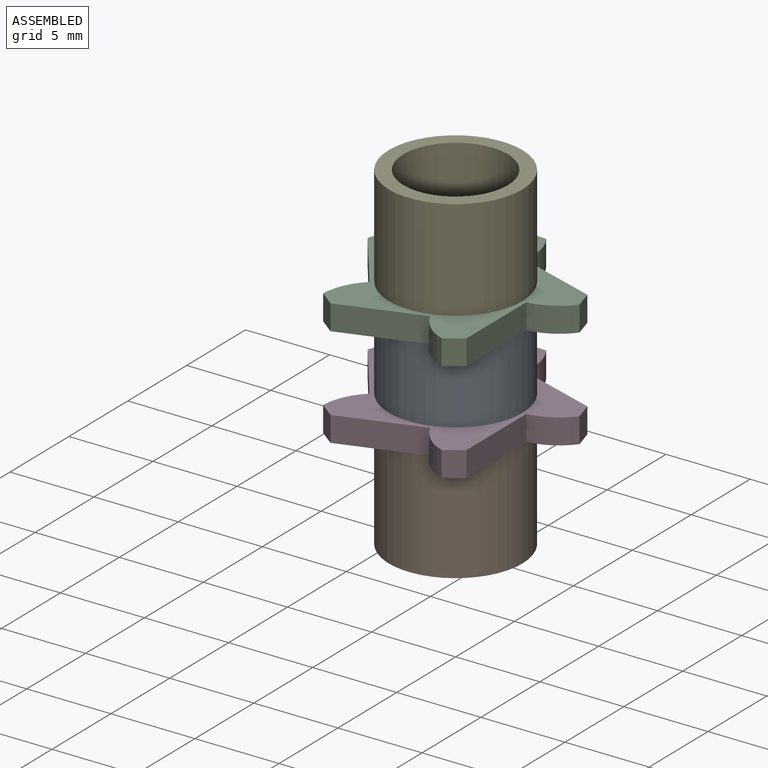
[diagram: assembled view]
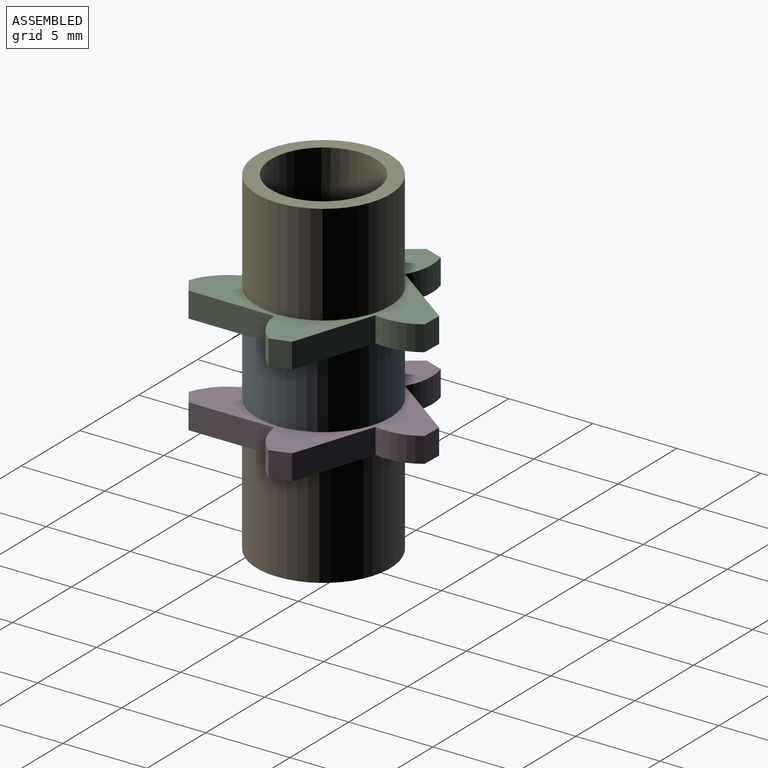
[diagram: assembled view, second angle]
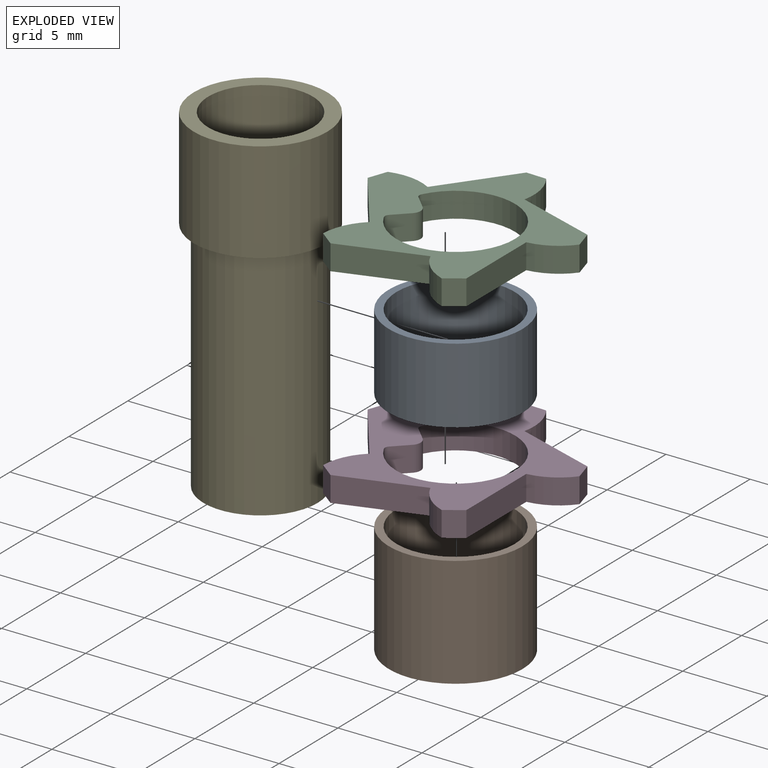
[diagram: exploded view]
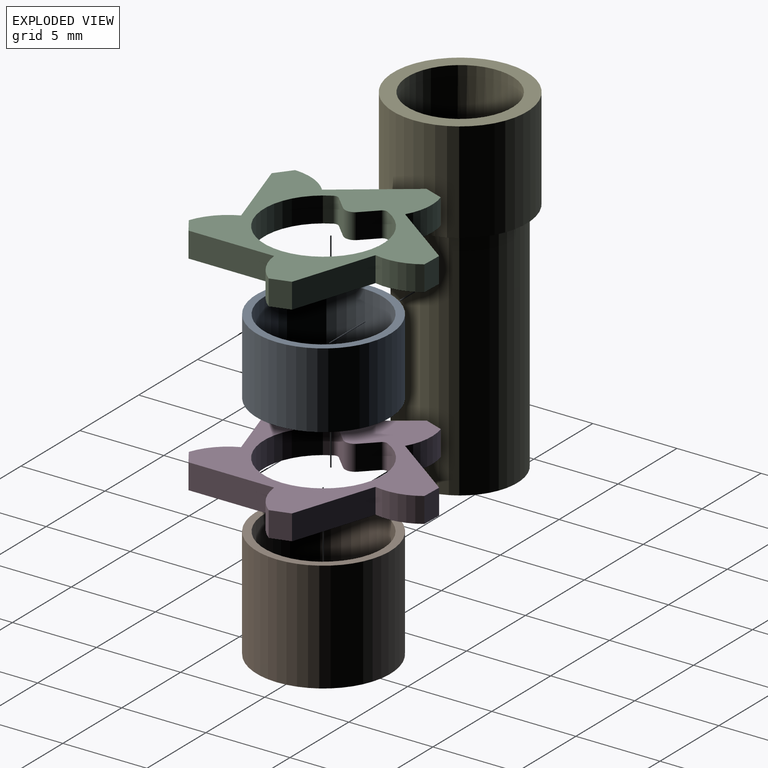
[diagram: exploded view, second angle]
ASSEMBLY  parts=5 mates=3
PART A: 4 faces, bbox 7.9x7.9x4.5 mm
  f0: cylinder r=3.51mm len=7.02mm, axis (0,0,-1), area 99.2mm2, adj f2,f3
  f1: cylinder r=3.97mm len=7.94mm, axis (0,0,-1), area 112.2mm2, adj f2,f3
  f2: plane 7.94x7.94mm, normal (0,0,1), area 10.8mm2, adj f0,f1
  f3: plane 7.94x7.94mm, normal (0,0,-1), area 10.8mm2, adj f0,f1
PART B: 4 faces, bbox 7.9x7.9x6.6 mm
  f0: cylinder r=3.51mm len=7.02mm, axis (0,0,-1), area 145.5mm2, adj f2,f3
  f1: cylinder r=3.97mm len=7.94mm, axis (0,0,-1), area 164.6mm2, adj f2,f3
  f2: plane 7.94x7.94mm, normal (0,0,1), area 10.8mm2, adj f0,f1
  f3: plane 7.94x7.94mm, normal (0,0,-1), area 10.8mm2, adj f0,f1
PART C: 23 faces, bbox 12.9x12.4x1.5 mm
  f0: plane 5.09x1.5mm, normal (1,0,0), area 7.6mm2, adj f1,f20,f21,f22
  f1: cylinder r=3.29mm len=2.28mm, axis (0,0,-1), area 4mm2, adj f0,f2,f21,f22
  f2: plane 1.5x1.15mm, normal (0.96,0.28,0), area 1.8mm2, adj f1,f3,f21,f22
  f3: plane 4.84x1.57mm, normal (0.31,0.95,0), area 7.6mm2, adj f2,f4,f21,f22
  f4: cylinder r=3.29mm len=2.56mm, axis (0,0,-1), area 4mm2, adj f3,f5,f21,f22
  f5: plane 1.5x1.2mm, normal (0.03,1,0), area 1.8mm2, adj f4,f6,f21,f22
  f6: plane 4.12x2.99mm, normal (-0.81,0.59,0), area 7.6mm2, adj f5,f7,f21,f22
  f7: cylinder r=3.29mm len=2.59mm, axis (0,0,-1), area 4mm2, adj f6,f8,f21,f22
  f8: plane 1.5x1.13mm, normal (-0.94,0.34,0), area 1.8mm2, adj f7,f9,f21,f22
  f9: plane 4.12x2.99mm, normal (-0.81,-0.59,0), area 7.6mm2, adj f8,f10,f21,f22
  f10: cylinder r=3.29mm len=2.37mm, axis (0,0,-1), area 4mm2, adj f9,f11,f21,f22
  f11: plane 1.5x0.95mm, normal (-0.61,-0.79,0), area 1.8mm2, adj f10,f12,f21,f22
  f12: plane 4.84x1.57mm, normal (0.31,-0.95,0), area 7.6mm2, adj f11,f13,f21,f22
  f13: cylinder r=3.29mm len=1.91mm, axis (0,0,-1), area 4mm2, adj f12,f20,f21,f22
  f14: cylinder r=3.53mm len=7.06mm, axis (0,0,-1), area 28.3mm2, adj f15,f19,f21,f22
  f15: cylinder r=0.3mm len=1.5mm, axis (0,0,-1), area 0.6mm2, adj f14,f16,f21,f22
  f16: plane 1.5x0.83mm, normal (0.71,-0.71,0), area 1.8mm2, adj f15,f17,f21,f22
  f17: cylinder r=0.6mm len=1.5mm, axis (0,0,-1), area 1.4mm2, adj f16,f18,f21,f22
  f18: plane 1.5x0.83mm, normal (0.71,0.71,0), area 1.8mm2, adj f17,f19,f21,f22
  f19: cylinder r=0.3mm len=1.5mm, axis (0,0,-1), area 0.6mm2, adj f14,f18,f21,f22
  f20: plane 1.5x0.99mm, normal (0.56,-0.83,0), area 1.8mm2, adj f0,f13,f21,f22
  f21: plane 12.87x12.36mm, normal (0,0,1), area 52.2mm2, adj f0,f1,f2,f3,f4,f5,f6,f7
  f22: plane 12.87x12.36mm, normal (0,0,-1), area 52.2mm2, adj f0,f1,f2,f3,f4,f5,f6,f7
PART D: same geometry as C
PART E: 12 faces, bbox 7.9x7.9x20.1 mm
  f0: cylinder r=3.11mm len=20.1mm, axis (0,0,-1), area 346.2mm2, adj f2,f4,f5,f9,f11
  f1: cylinder r=3.97mm len=7.94mm, axis (0,0,-1), area 149.7mm2, adj f2,f3
  f2: plane 7.94x7.94mm, normal (0,0,1), area 19.2mm2, adj f0,f1
  f3: plane 7.94x7.94mm, normal (0,0,-1), area 13.3mm2, adj f1,f10
  f4: plane 3.13x1.46mm, normal (0,0,1), area 2.7mm2, adj f0,f5,f6,f7,f8,f9
  f5: cylinder r=0.15mm len=14.1mm, axis (0,0,1), area 2.8mm2, adj f0,f4,f6,f11
  f6: plane 14.1x0.75mm, normal (0.71,0.71,0), area 14.9mm2, adj f4,f5,f7,f11
  f7: cylinder r=0.9mm len=14.1mm, axis (0,0,1), area 19.9mm2, adj f4,f6,f8,f11
  f8: plane 14.1x0.75mm, normal (0.71,-0.71,0), area 14.9mm2, adj f4,f7,f9,f11
  f9: cylinder r=0.15mm len=14.1mm, axis (0,0,1), area 2.8mm2, adj f0,f4,f8,f11
  f10: cylinder r=3.4mm len=14.1mm, axis (0,0,1), area 300.8mm2, adj f3,f11
  f11: plane 6.79x6.79mm, normal (0,0,-1), area 8.6mm2, adj f0,f5,f6,f7,f8,f9,f10
PLACE A t=(0,0,-6)mm
PLACE B t=(0,0,-14.1)mm
PLACE C t=(0,0,-1.5)mm
PLACE D t=(0,0,-7.5)mm
PLACE E at identity fixed
MATE fastened C.f14 <-> A.f0  axis (0,0,-1) through (0,0,-1.5)mm
MATE fastened D.f14 <-> A.f0  axis (0,0,-1) through (0,0,-6)mm
MATE fastened B.f0 <-> D.f14  axis (0,0,-1) through (0,0,-7.5)mm
